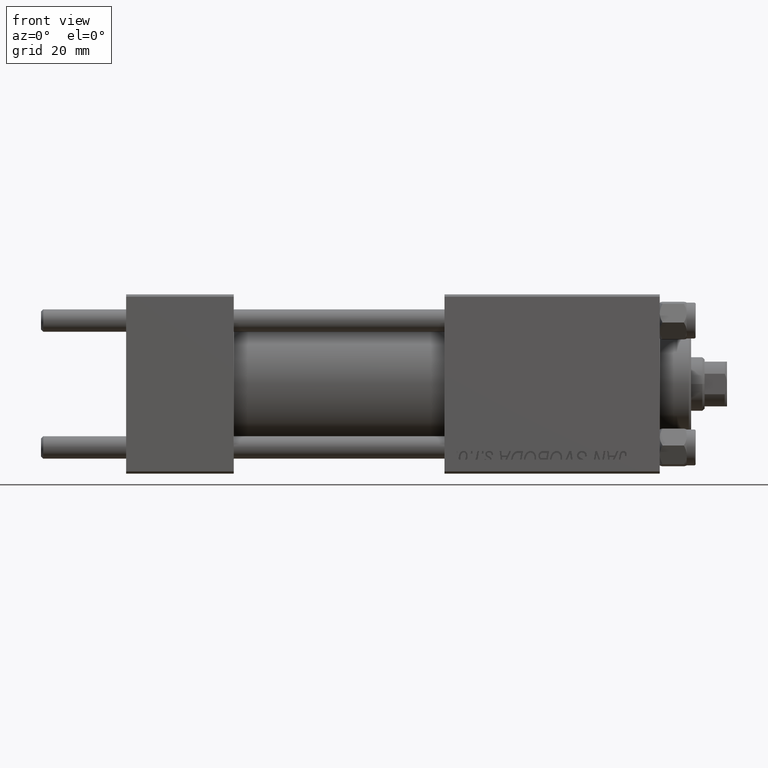
[diagram: clean part render]
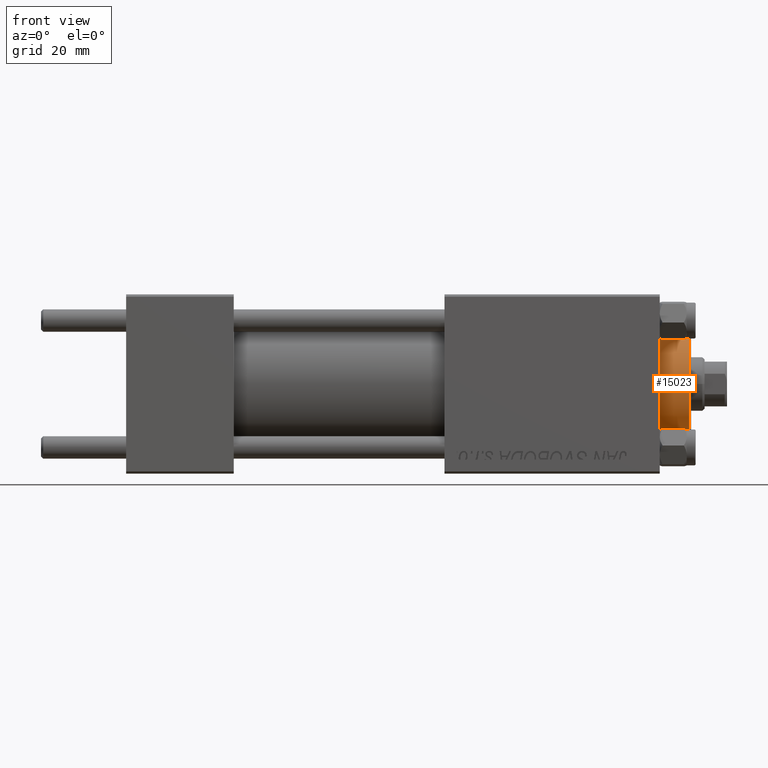
[diagram: same view with one face highlighted and labeled with its STEP entity id]
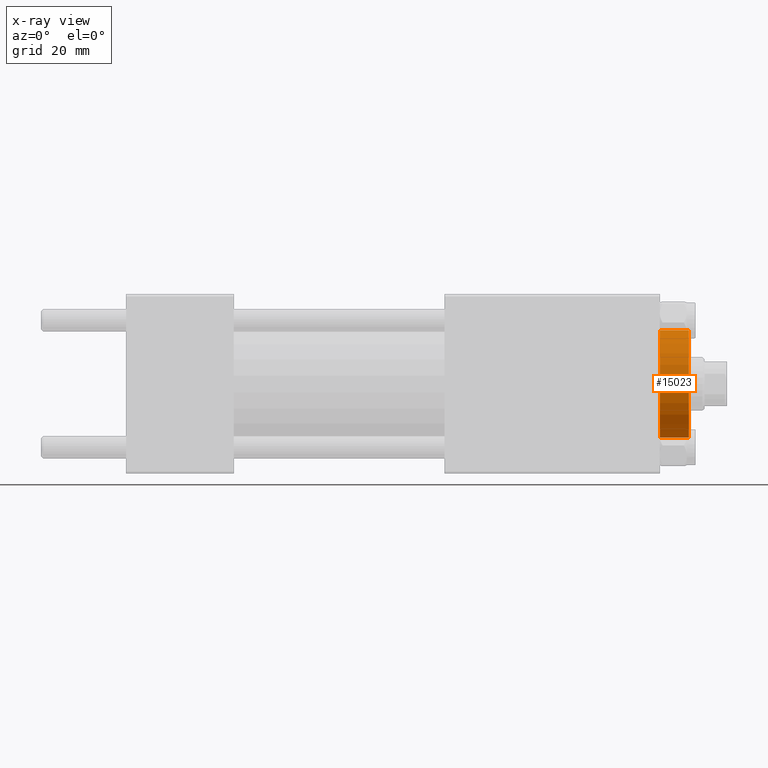
[diagram: x-ray of the same camera — body ghosted, the highlighted face saturated]
A machine part, front view. The second image highlights one B-rep face of the part: STEP entity #15023.
The next image is the same camera in x-ray: the body ghosted, the highlighted face saturated — about 0% of this face is hidden behind the body in this view.
In plain terms, the highlighted cylindrical surface (partial cylindrical patch) has radius 12 mm, axis along (-1, -0, 0).
Its self-contained STEP definition (entity closure, byte-faithful):
#899 = CARTESIAN_POINT ( 'NONE',  ( 12.00000000000000178, 0.000000000000000000, 28.69999999999999929 ) ) ;
#2265 = CARTESIAN_POINT ( 'NONE',  ( 0.000000000000000000, 0.000000000000000000, 28.69999999999999929 ) ) ;
#2730 = AXIS2_PLACEMENT_3D ( 'NONE', #2265, #33050, #10136 ) ;
#3968 = CARTESIAN_POINT ( 'NONE',  ( 0.000000000000000000, 0.000000000000000000, 35.70000000000000284 ) ) ;
#4255 = AXIS2_PLACEMENT_3D ( 'NONE', #3968, #19355, #49690 ) ;
#4786 = DIRECTION ( 'NONE',  ( -0.000000000000000000, -0.000000000000000000, -1.000000000000000000 ) ) ;
#6037 = VERTEX_POINT ( 'NONE', #899 ) ;
#7344 = VERTEX_POINT ( 'NONE', #19702 ) ;
#8758 = DIRECTION ( 'NONE',  ( -0.000000000000000000, -0.000000000000000000, -1.000000000000000000 ) ) ;
#10136 = DIRECTION ( 'NONE',  ( 1.000000000000000000, 0.000000000000000000, 0.000000000000000000 ) ) ;
#12801 = LINE ( 'NONE', #38529, #37640 ) ;
#15023 = ADVANCED_FACE ( 'NONE', ( #29978 ), #34503, .T. ) ;
#18318 = CARTESIAN_POINT ( 'NONE',  ( 0.000000000000000000, 0.000000000000000000, 35.19999999999999574 ) ) ;
#18961 = AXIS2_PLACEMENT_3D ( 'NONE', #18318, #33470, #33208 ) ;
#19355 = DIRECTION ( 'NONE',  ( -0.000000000000000000, -0.000000000000000000, -1.000000000000000000 ) ) ;
#19702 = CARTESIAN_POINT ( 'NONE',  ( -12.00000000000000178, 0.000000000000000000, 35.19999999999999574 ) ) ;
#23415 = ORIENTED_EDGE ( 'NONE', *, *, #45351, .T. ) ;
#25537 = VERTEX_POINT ( 'NONE', #28530 ) ;
#25826 = EDGE_CURVE ( 'NONE', #7344, #25537, #34560, .T. ) ;
#28530 = CARTESIAN_POINT ( 'NONE',  ( -12.00000000000000178, 0.000000000000000000, 28.69999999999999929 ) ) ;
#29978 = FACE_OUTER_BOUND ( 'NONE', #42165, .T. ) ;
#30041 = ORIENTED_EDGE ( 'NONE', *, *, #25826, .T. ) ;
#30521 = VECTOR ( 'NONE', #4786, 1000.000000000000000 ) ;
#30528 = ORIENTED_EDGE ( 'NONE', *, *, #48552, .F. ) ;
#31063 = CIRCLE ( 'NONE', #18961, 12.00000000000000178 ) ;
#31523 = CARTESIAN_POINT ( 'NONE',  ( -12.00000000000000178, 0.000000000000000000, 35.70000000000000284 ) ) ;
#33050 = DIRECTION ( 'NONE',  ( 0.000000000000000000, 0.000000000000000000, 1.000000000000000000 ) ) ;
#33208 = DIRECTION ( 'NONE',  ( 1.000000000000000000, 0.000000000000000000, 0.000000000000000000 ) ) ;
#33470 = DIRECTION ( 'NONE',  ( 0.000000000000000000, 0.000000000000000000, -1.000000000000000000 ) ) ;
#34503 = CYLINDRICAL_SURFACE ( 'NONE', #4255, 12.00000000000000178 ) ;
#34560 = LINE ( 'NONE', #31523, #30521 ) ;
#37640 = VECTOR ( 'NONE', #8758, 1000.000000000000000 ) ;
#38529 = CARTESIAN_POINT ( 'NONE',  ( 12.00000000000000178, 1.469576158976824144E-15, 35.70000000000000284 ) ) ;
#40888 = EDGE_CURVE ( 'NONE', #25537, #6037, #47852, .T. ) ;
#42165 = EDGE_LOOP ( 'NONE', ( #30528, #23415, #30041, #49579 ) ) ;
#43856 = CARTESIAN_POINT ( 'NONE',  ( 12.00000000000000178, 1.469576158976824144E-15, 35.19999999999999574 ) ) ;
#45351 = EDGE_CURVE ( 'NONE', #46404, #7344, #31063, .T. ) ;
#46404 = VERTEX_POINT ( 'NONE', #43856 ) ;
#47852 = CIRCLE ( 'NONE', #2730, 12.00000000000000178 ) ;
#48552 = EDGE_CURVE ( 'NONE', #46404, #6037, #12801, .T. ) ;
#49579 = ORIENTED_EDGE ( 'NONE', *, *, #40888, .T. ) ;
#49690 = DIRECTION ( 'NONE',  ( -1.000000000000000000, 0.000000000000000000, 0.000000000000000000 ) ) ;